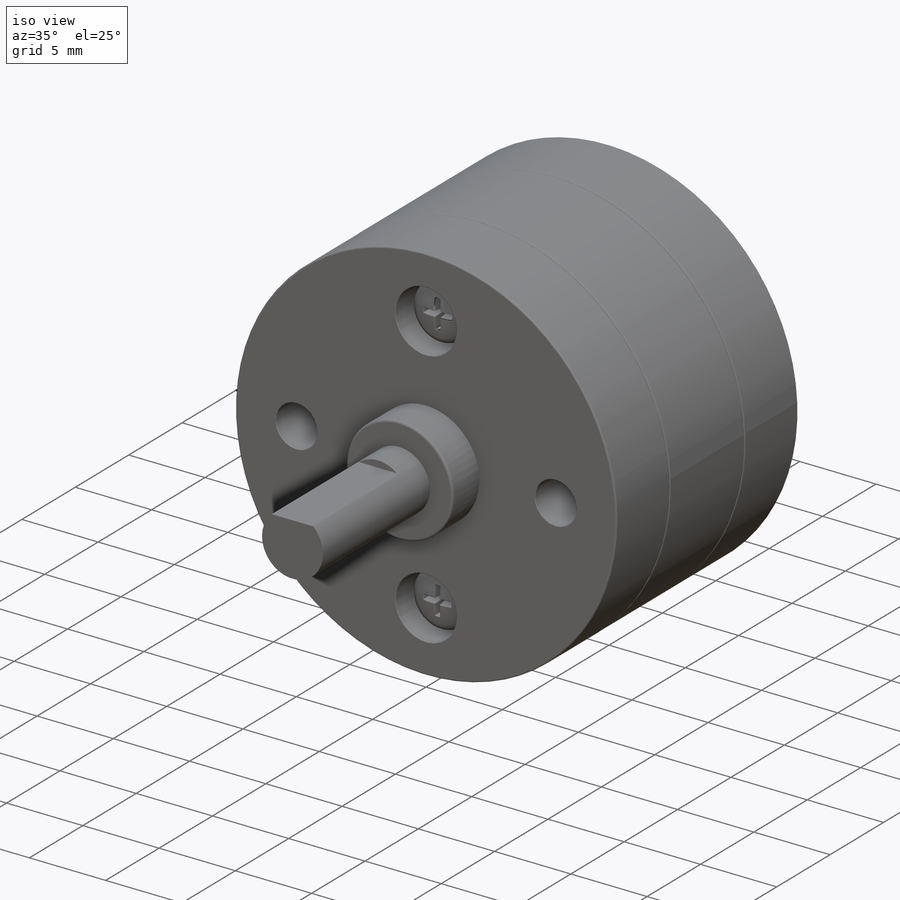
[diagram: iso view]
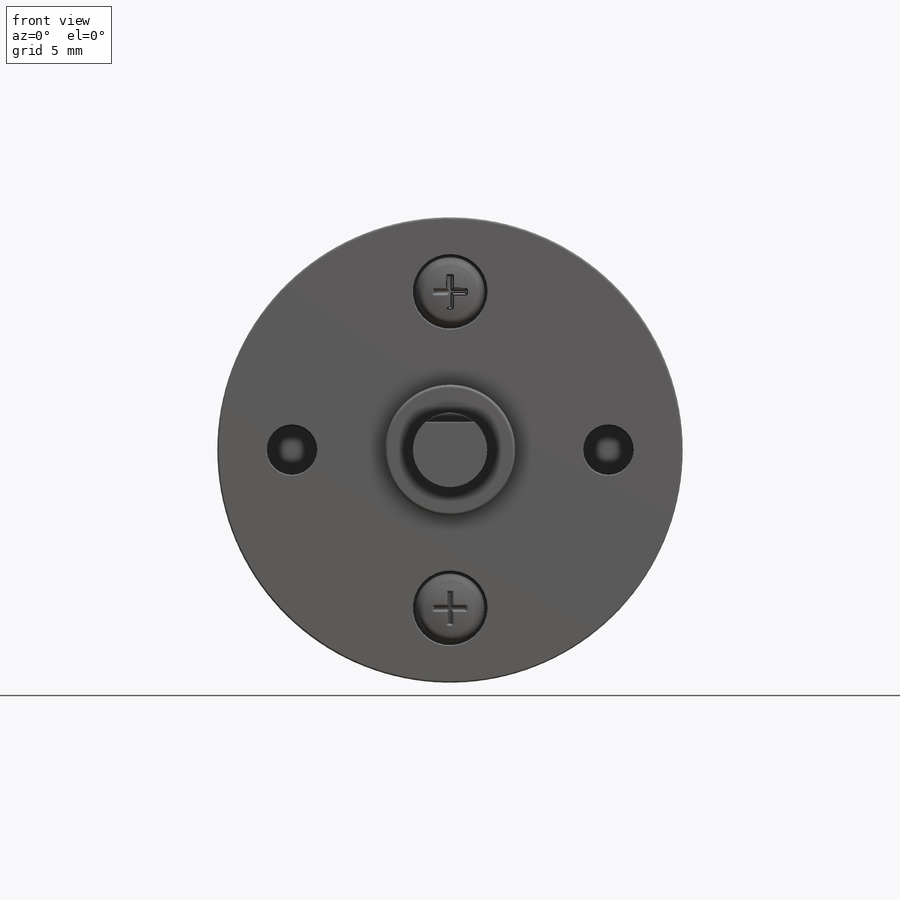
[diagram: front view]
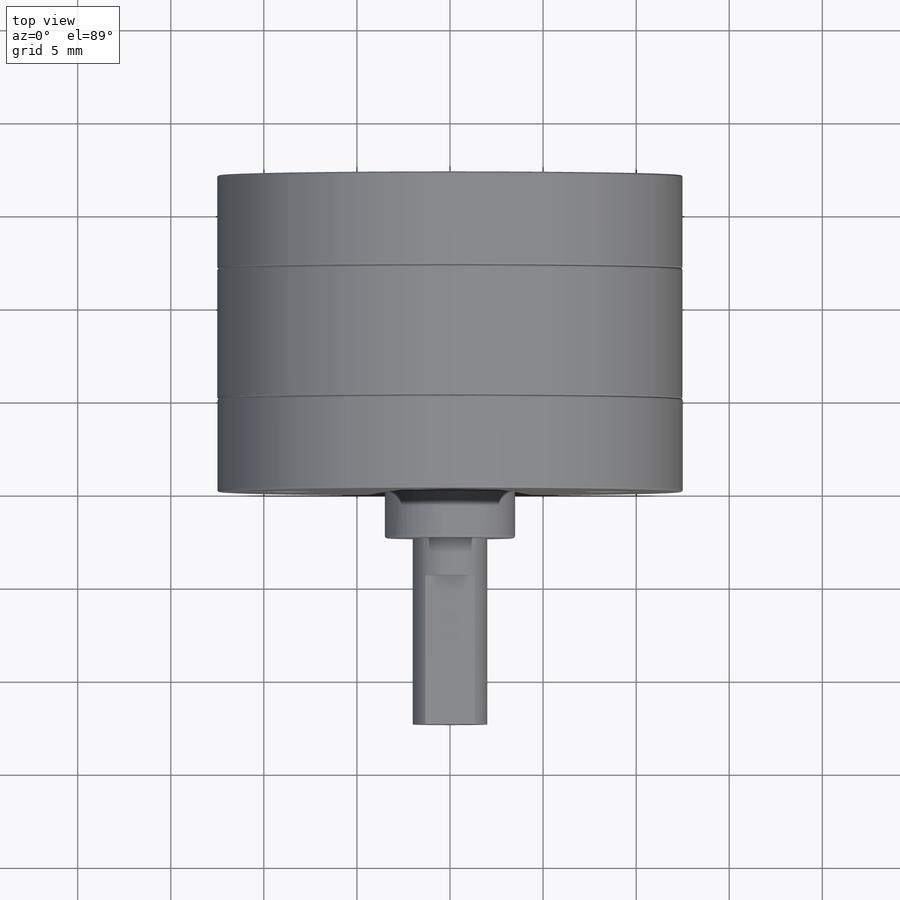
[diagram: top view]
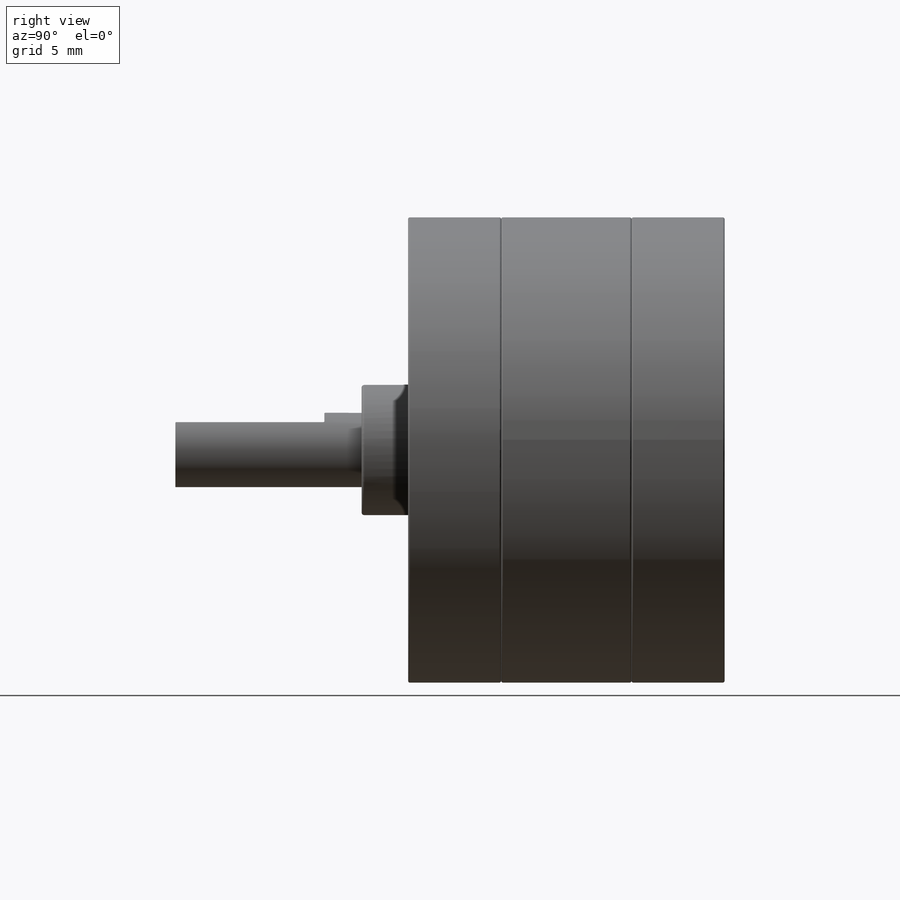
[diagram: right view]
SOLIDWORKS PART (.sldprt)
format: sldprt  version: not decoded by parser v0  size: 1,184,256 bytes
history: native  units: mm
features: sketch x23, extrude x15, fillet x12, cut_extrude x6, plane x3, revolve x2, pattern_circular x2, material x1, chamfer x1 (+11 scaffold rows collapsed)
feature tree (76):
  scaffold x11  (default folders/planes/origin — collapsed)
  material  "Pololu 25D"
  sketch  "Sketch1"  dims[D1=25.0mm D2=~37.852163mm]
  extrude  "Boss-Extrude1"  Depth=5mm
  fillet  "Fillet1"  Radius=0.1mm
  sketch  "Sketch2"
  extrude  "Boss-Extrude2"  Depth=7mm
  fillet  "Fillet2"  Radius=0.1mm
  sketch  "Sketch3"
  extrude  "Boss-Extrude3"  Depth=5mm
  fillet  "Fillet3"  Radius=0.1mm
  plane  "Plane1"  Offset=0.01mm
  sketch  "Sketch4"  dims[D1=24.4mm]
  extrude  "Boss-Extrude4"  Depth=30.8mm
  fillet  "Fillet5"  Radius=0.3mm
  sketch  "Sketch5"  dims[c1.D1=7.0mm c1.D2=4.0mm c2.D1=7.0mm]
  extrude  "Boss-Extrude5"  Depth=2.5mm
  fillet  "Fillet6"  Radius=0.15mm
  sketch  "Sketch6"  dims[D1=4.0mm]
  extrude  "Boss-Extrude6"  Depth=12.5mm
  sketch  "Sketch7"  dims[c1.D1=~0.746447mm c1.D2=~4.531998mm c2.D1=1.5mm]
  cut_extrude  "Cut-Extrude1"  Depth=8mm
  fillet  "Fillet7"  Radius=0.05mm
  sketch  "Sketch8"  dims[c1.D1=~3.191936mm c1.D2=2.7mm c1.D3=4.0mm c1.D4=4.0mm c2.D1=8.5mm c2.D2=8.5mm c2.D4=4.0]
  cut_extrude  "Cut-Extrude2"  Depth=7.5mm
  cut_extrude  "Cut-Extrude3"  [1 undecoded]
  sketch  "Sketch8<3>"  dims[D1=2.5mm]
  fillet  "Fillet8"  Radius=0.05mm
  sketch  "Sketch9"  dims[c1.D1=0.5mm c1.D2=0.5mm c2.D1=~0.591566mm c2.D2=~1.253524mm]
  revolve  "Revolve1"  Angle=360deg
  sketch  "Sketch10"  dims[c1.D1=~0.502885mm c1.D2=~2.05947mm c2.D1=~1.858788mm c2.D2=~0.569366mm c3.D1=0.5mm c3.D2=0.5mm c3.D3=90.0deg c4.D3=0.5mm c5.D3=90.0deg c6.D3=2.0mm c6.D4=2.0mm c6.D5=1.8mm]
  cut_extrude  "Cut-Extrude4"  Depth=2mm
  fillet  "Fillet9"  Radius=0.05mm
  pattern_circular  "CirPattern9"  Count=2 Angle=180deg
  sketch  "Sketch12"  dims[D1=1.5mm]
  extrude  "Boss-Extrude7"  Depth=5mm
  plane  "Plane2"  Offset=1.5mm
  sketch  "Sketch11"  dims[D1=23.0mm D2=2.5mm D3=~2.322601mm D4=10.0mm D5=10.0mm]
  extrude  "Boss-Extrude8"  Depth=1.5mm
  plane  "Plane3"  Offset=10mm
  sketch  "Sketch13"  dims[D1=~4.253453mm]
  revolve  "Revolve2"  Angle=360deg
  pattern_circular  "CirPattern10"  Count=2 Angle=360deg
  sketch  "Sketch14"  dims[D1=14.0mm]
  extrude  "Boss-Extrude9"  Depth=3mm
  sketch  "Sketch15"  dims[D1=10.0mm]
  extrude  "Boss-Extrude10"  Depth=1mm
  sketch  "Sketch16"  dims[c1.D1=~1.654362mm c1.D2=~1.345225mm c2.D1=~1.992754mm c2.D2=~6.375166mm]
  extrude  "Boss-Extrude11"  Depth=5mm
  sketch  "Sketch18"  dims[c1.D1=~1.380039mm c1.D2=~5.725485mm c2.D1=~1.992754mm c2.D2=~6.375166mm]
  cut_extrude  "Cut-Extrude5"  Depth=2.5mm
  fillet  "Fillet10"  Radius=0.05mm
  fillet  "Fillet11"  Radius=0.05mm
  fillet  "Fillet12"  Radius=0.05mm
  sketch  "Sketch19"  dims[D1=1.5mm]
  extrude  "Boss-Extrude12"  Depth=0.5mm
  sketch  "Sketch20"  dims[D1=0.3mm]
  cut_extrude  "Cut-Extrude6"  Depth=0.7mm
  sketch  "Sketch21"  dims[D1=6.25mm]
  extrude  "Boss-Extrude13"  Depth=2mm
  sketch  "Sketch23"  dims[D2=1.6mm D1=2.8mm]
  extrude  "Boss-Extrude14"  Depth=0.2mm
  sketch  "Sketch24"  dims[c1.D1=0.4mm c1.D2=2.0mm c1.D3=0.2mm c1.D4=~7.857695mm c2.D4=90.0deg c3.D4=8.0mm c3.D5=8.0mm]
  extrude  "Boss-Extrude15"  Depth=5mm
  fillet  "Fillet13"  Radius=0.5mm
  chamfer  "Chamfer1"  Distance=0.5mm Angle=45deg
decode coverage: 58 of 61 modeling features carry decoded parameters
note: ~ marks probable driven/reference dimensions
note: 1 parameter value undecoded
note: suppression state not decoded; provenance and decode notes live in map.json
